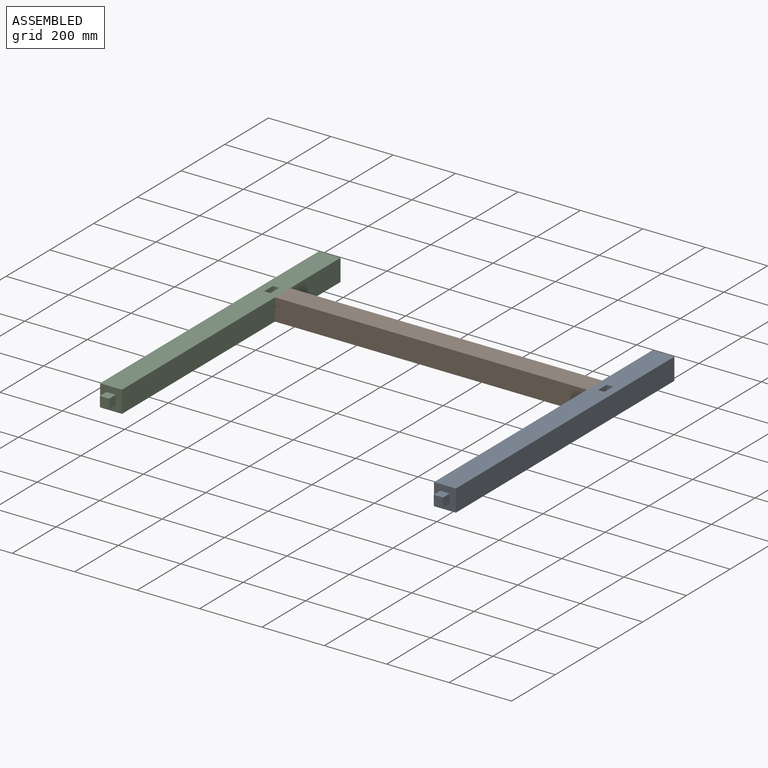
[diagram: assembled view]
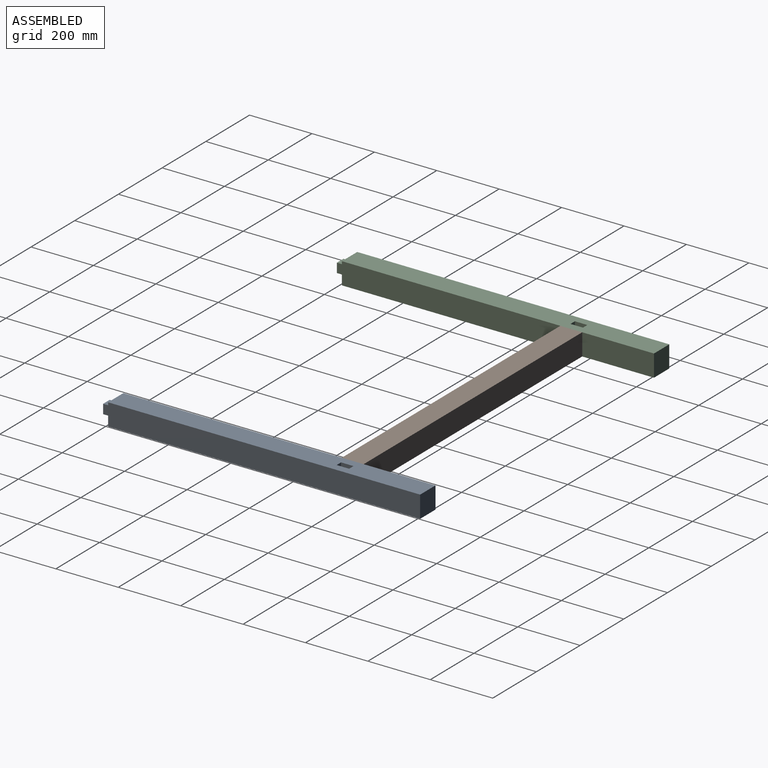
[diagram: assembled view, second angle]
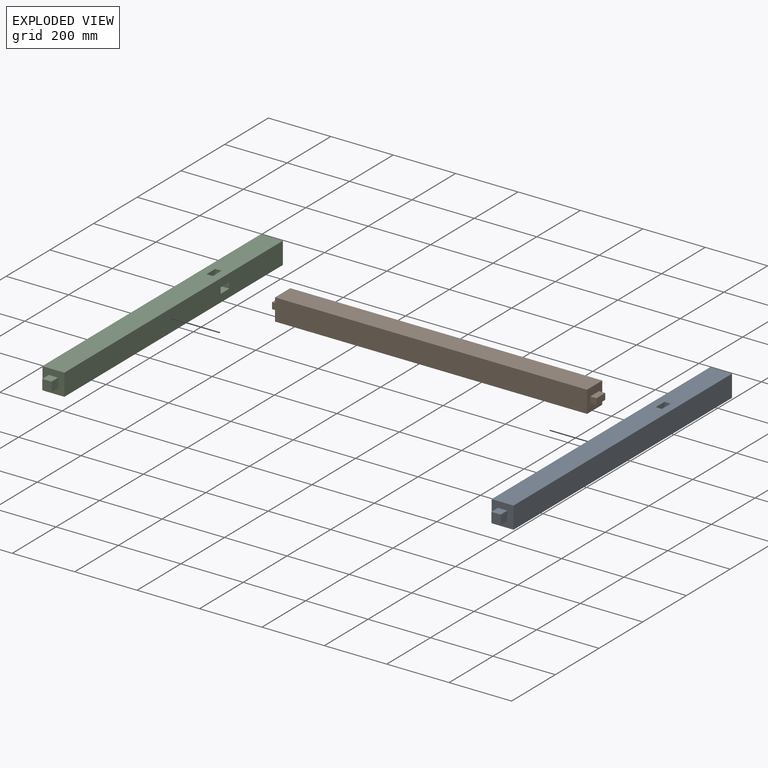
[diagram: exploded view]
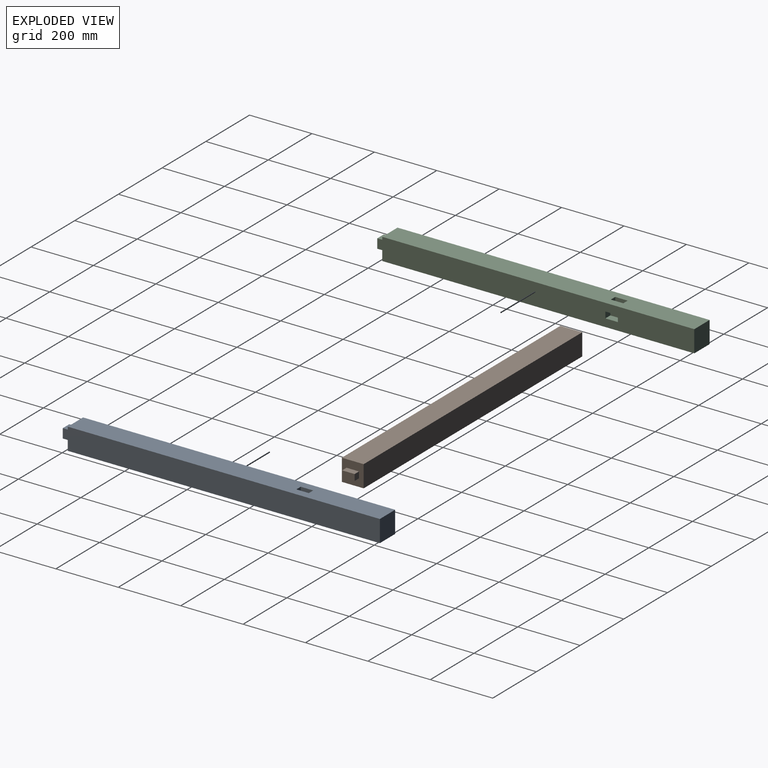
[diagram: exploded view, second angle]
ASSEMBLY  parts=3 mates=2
PART A: 21 faces, bbox 70x1030x70 mm
  f0: plane 70x70mm, normal (0,-1,0), area 4000mm2, adj f1,f2,f3,f4,f16,f17,f18,f19
  f1: plane 1000x70mm, normal (0,0,1), area 69200mm2, adj f0,f2,f3,f5,f11,f12,f13,f14
  f2: plane 1000x70mm, normal (1,0,0), area 69200mm2, adj f0,f1,f4,f5,f6,f7,f8,f9
  f3: plane 1000x70mm, normal (-1,0,0), area 70000mm2, adj f0,f1,f4,f5
  f4: plane 1000x70mm, normal (0,0,-1), area 70000mm2, adj f0,f2,f3,f5
  f5: plane 70x70mm, normal (0,1,0), area 4900mm2, adj f1,f2,f3,f4
  f6: plane 23x20mm, normal (0,1,0), area 460mm2, adj f2,f7,f9,f10
  f7: plane 40x23mm, normal (0,0,1), area 920mm2, adj f2,f6,f8,f10
  f8: plane 23x20mm, normal (0,-1,0), area 460mm2, adj f2,f7,f9,f10
  f9: plane 40x23mm, normal (0,0,-1), area 920mm2, adj f2,f6,f8,f10
  f10: plane 40x20mm, normal (1,0,0), area 800mm2, adj f6,f7,f8,f9
  f11: plane 23x20mm, normal (0,1,0), area 460mm2, adj f1,f12,f14,f15
  f12: plane 40x23mm, normal (-1,0,0), area 920mm2, adj f1,f11,f13,f15
  f13: plane 23x20mm, normal (0,-1,0), area 460mm2, adj f1,f12,f14,f15
  f14: plane 40x23mm, normal (1,0,0), area 920mm2, adj f1,f11,f13,f15
  f15: plane 40x20mm, normal (0,0,1), area 800mm2, adj f11,f12,f13,f14
  f16: plane 30x30mm, normal (-1,0,0), area 900mm2, adj f0,f17,f19,f20
  f17: plane 30x30mm, normal (0,0,-1), area 900mm2, adj f0,f16,f18,f20
  f18: plane 30x30mm, normal (1,0,0), area 900mm2, adj f0,f17,f19,f20
  f19: plane 30x30mm, normal (0,0,1), area 900mm2, adj f0,f16,f18,f20
  f20: plane 30x30mm, normal (0,-1,0), area 900mm2, adj f16,f17,f18,f19
PART B: 16 faces, bbox 70x1040x70 mm
  f0: plane 70x70mm, normal (0,-1,0), area 4100mm2, adj f1,f2,f3,f4,f5,f6,f7,f8
  f1: plane 1000x70mm, normal (1,0,0), area 70000mm2, adj f0,f2,f4,f10
  f2: plane 1000x70mm, normal (0,0,1), area 70000mm2, adj f0,f1,f3,f10
  f3: plane 1000x70mm, normal (-1,0,0), area 70000mm2, adj f0,f2,f4,f10
  f4: plane 1000x70mm, normal (0,0,-1), area 70000mm2, adj f0,f1,f3,f10
  f5: plane 20x20mm, normal (0,0,-1), area 400mm2, adj f0,f6,f8,f9
  f6: plane 40x20mm, normal (1,0,0), area 800mm2, adj f0,f5,f7,f9
  f7: plane 20x20mm, normal (0,0,1), area 400mm2, adj f0,f6,f8,f9
  f8: plane 40x20mm, normal (-1,0,0), area 800mm2, adj f0,f5,f7,f9
  f9: plane 40x20mm, normal (0,-1,0), area 800mm2, adj f5,f6,f7,f8
  f10: plane 70x70mm, normal (0,1,0), area 4100mm2, adj f1,f2,f3,f4,f11,f12,f13,f14
  f11: plane 20x20mm, normal (0,0,-1), area 400mm2, adj f10,f12,f14,f15
  f12: plane 40x20mm, normal (1,0,0), area 800mm2, adj f10,f11,f13,f15
  f13: plane 20x20mm, normal (0,0,1), area 400mm2, adj f10,f12,f14,f15
  f14: plane 40x20mm, normal (-1,0,0), area 800mm2, adj f10,f11,f13,f15
  f15: plane 40x20mm, normal (0,1,0), area 800mm2, adj f11,f12,f13,f14
PART C: same geometry as A
PLACE A rot(axis=(0,-1,0),90deg) t=(1602.77,33.81,604.91)mm
PLACE B rot(axis=(-0.58,0.58,0.58),120deg) t=(1067.77,-231.19,604.91)mm
PLACE C t=(532.77,33.81,604.91)mm fixed
MATE fastened C.f2 <-> B.f10  axis (1,0,0) through (567.77,-211.19,604.91)mm
MATE fastened B.f0 <-> A.f1  axis (1,0,0) through (1567.77,-211.19,604.91)mm
